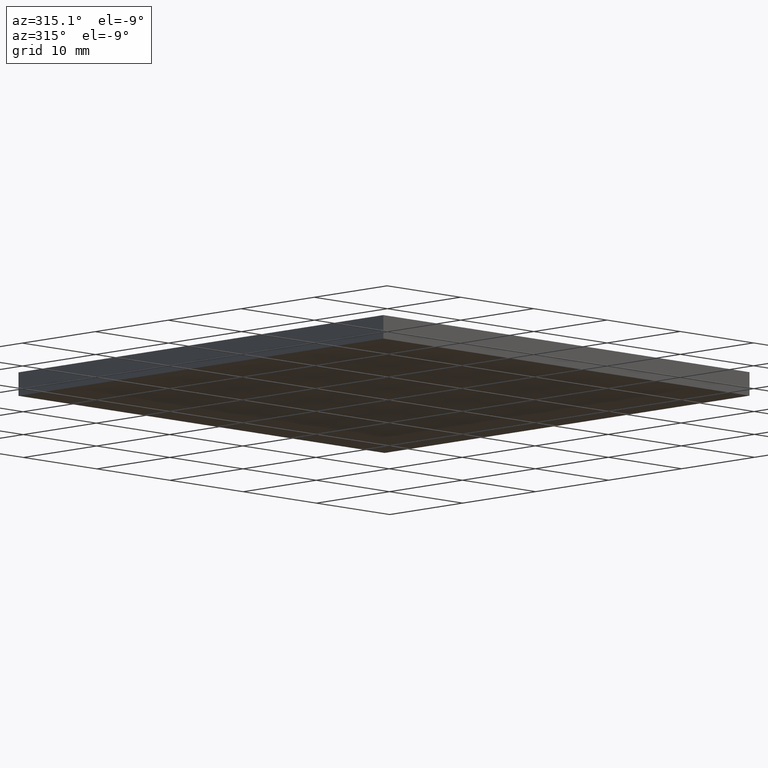
[diagram: clean part render]
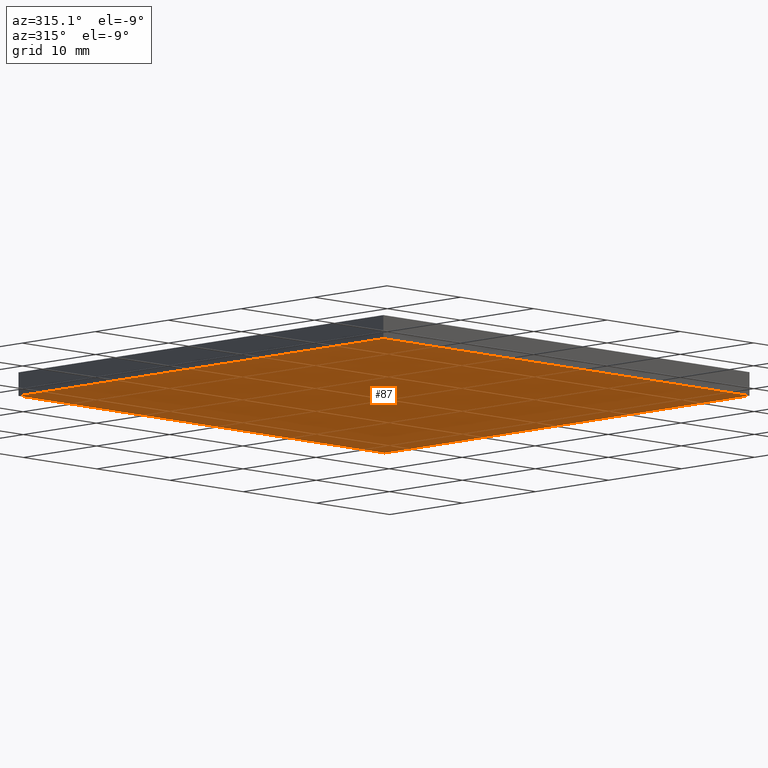
[diagram: same view with one face highlighted and labeled with its STEP entity id]
A machine part, auxiliary view. The second image highlights one B-rep face of the part: STEP entity #87.
In plain terms, the highlighted planar face has unit normal (-0, 0, 1).
Its self-contained STEP definition (entity closure, byte-faithful):
#11 = ORIENTED_EDGE ( 'NONE', *, *, #163, .F. ) ;
#12 = CARTESIAN_POINT ( 'NONE',  ( 177.4958715517701600, 98.12648366905320100, 0.0000000000000000000 ) ) ;
#14 = ORIENTED_EDGE ( 'NONE', *, *, #188, .F. ) ;
#15 = EDGE_CURVE ( 'NONE', #122, #185, #194, .T. ) ;
#18 = VECTOR ( 'NONE', #51, 1000.000000000000000 ) ;
#24 = PLANE ( 'NONE',  #199 ) ;
#43 = VERTEX_POINT ( 'NONE', #165 ) ;
#46 = DIRECTION ( 'NONE',  ( -5.551115123125785700E-016, -1.000000000000000000, 0.0000000000000000000 ) ) ;
#47 = ORIENTED_EDGE ( 'NONE', *, *, #15, .F. ) ;
#48 = DIRECTION ( 'NONE',  ( 1.000000000000000000, 0.0000000000000000000, 0.0000000000000000000 ) ) ;
#51 = DIRECTION ( 'NONE',  ( -1.000000000000000000, -0.0000000000000000000, -0.0000000000000000000 ) ) ;
#73 = CARTESIAN_POINT ( 'NONE',  ( 177.4958715517701900, 148.1264836690531900, 0.0000000000000000000 ) ) ;
#78 = CARTESIAN_POINT ( 'NONE',  ( 177.4958715517701900, 148.1264836690531900, 0.0000000000000000000 ) ) ;
#87 = ADVANCED_FACE ( 'NONE', ( #135 ), #24, .F. ) ;
#88 = VECTOR ( 'NONE', #132, 1000.000000000000000 ) ;
#94 = LINE ( 'NONE', #130, #182 ) ;
#122 = VERTEX_POINT ( 'NONE', #147 ) ;
#129 = CARTESIAN_POINT ( 'NONE',  ( 0.0000000000000000000, 0.0000000000000000000, 0.0000000000000000000 ) ) ;
#130 = CARTESIAN_POINT ( 'NONE',  ( 227.4958715517701400, 148.1264836690531900, 0.0000000000000000000 ) ) ;
#132 = DIRECTION ( 'NONE',  ( 1.000000000000000000, 0.0000000000000000000, 0.0000000000000000000 ) ) ;
#134 = VECTOR ( 'NONE', #46, 1000.000000000000000 ) ;
#135 = FACE_OUTER_BOUND ( 'NONE', #175, .T. ) ;
#140 = EDGE_CURVE ( 'NONE', #43, #171, #179, .T. ) ;
#142 = ORIENTED_EDGE ( 'NONE', *, *, #140, .F. ) ;
#144 = DIRECTION ( 'NONE',  ( -0.0000000000000000000, 0.0000000000000000000, 1.000000000000000000 ) ) ;
#147 = CARTESIAN_POINT ( 'NONE',  ( 227.4958715517701400, 148.1264836690531900, 0.0000000000000000000 ) ) ;
#163 = EDGE_CURVE ( 'NONE', #171, #122, #94, .T. ) ;
#165 = CARTESIAN_POINT ( 'NONE',  ( 177.4958715517701600, 98.12648366905320100, 0.0000000000000000000 ) ) ;
#170 = CARTESIAN_POINT ( 'NONE',  ( 227.4958715517701600, 98.12648366905320100, 0.0000000000000000000 ) ) ;
#171 = VERTEX_POINT ( 'NONE', #170 ) ;
#173 = LINE ( 'NONE', #73, #134 ) ;
#175 = EDGE_LOOP ( 'NONE', ( #14, #47, #11, #142 ) ) ;
#179 = LINE ( 'NONE', #12, #88 ) ;
#180 = DIRECTION ( 'NONE',  ( -5.551115123125785700E-016, 1.000000000000000000, -0.0000000000000000000 ) ) ;
#181 = CARTESIAN_POINT ( 'NONE',  ( 177.4958715517701900, 148.1264836690531900, 0.0000000000000000000 ) ) ;
#182 = VECTOR ( 'NONE', #180, 1000.000000000000000 ) ;
#185 = VERTEX_POINT ( 'NONE', #181 ) ;
#188 = EDGE_CURVE ( 'NONE', #185, #43, #173, .T. ) ;
#194 = LINE ( 'NONE', #78, #18 ) ;
#199 = AXIS2_PLACEMENT_3D ( 'NONE', #129, #144, #48 ) ;